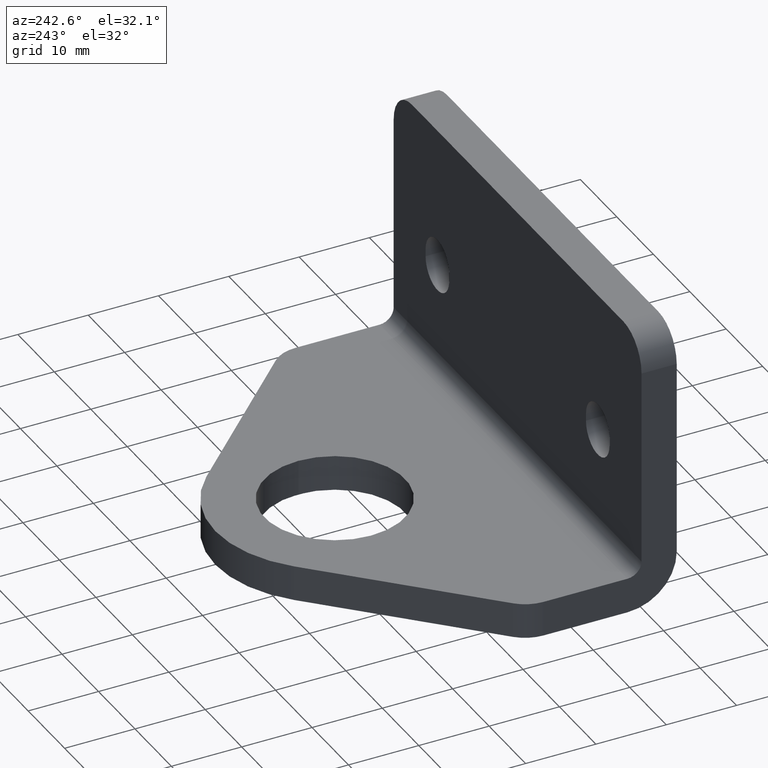
[diagram: clean part render]
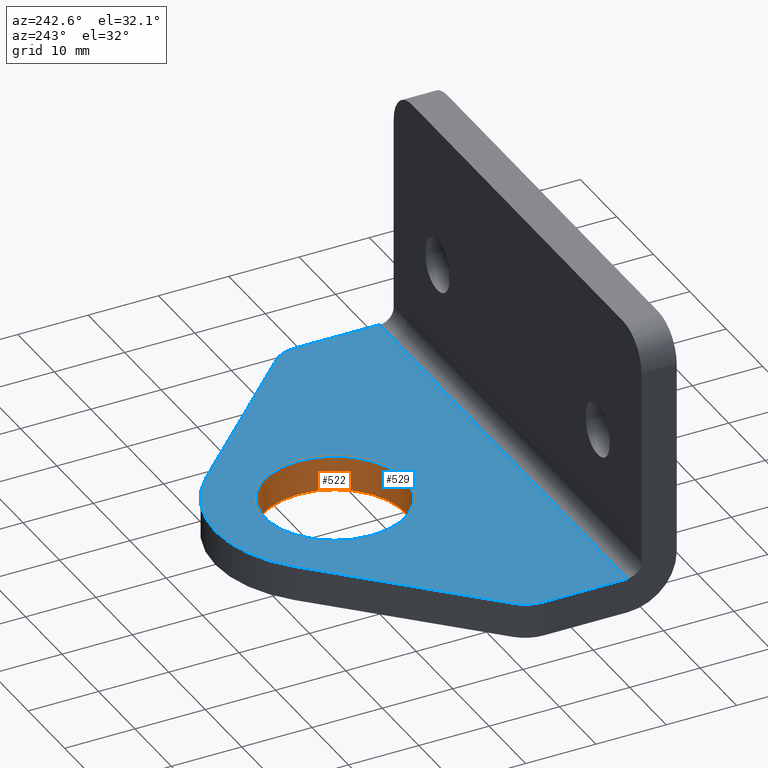
[diagram: same view with the hole feature highlighted: cylindrical wall and planar end face, labeled with their STEP entity ids]
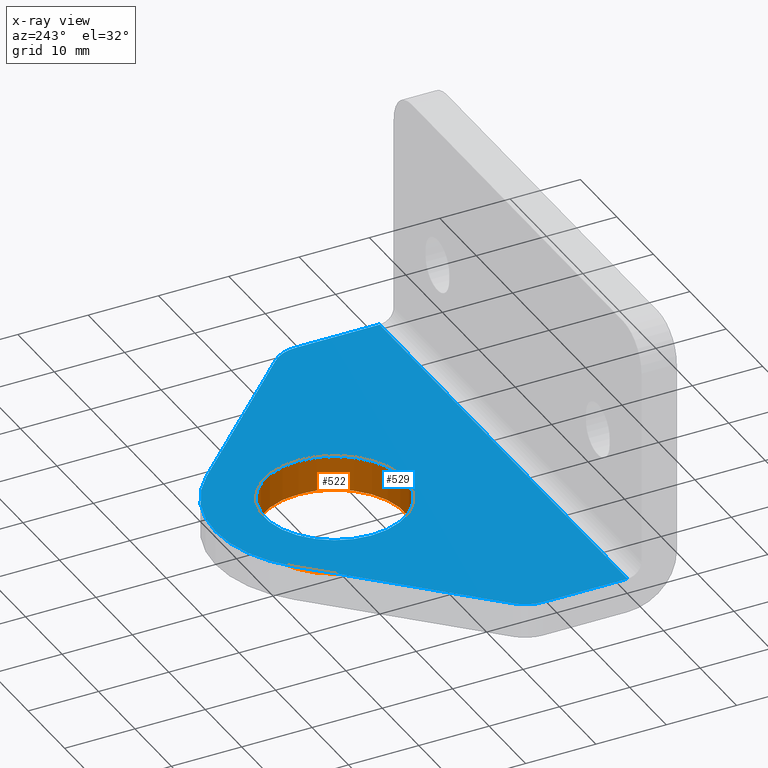
[diagram: x-ray of the same camera — body ghosted, the hole faces saturated]
A machine part, auxiliary view. The highlighted faces form one hole feature of diameter 20 mm: the cylindrical wall (entity #522, orange) and its adjacent planar end face (entity #529, blue) — they share a circular edge in the B-rep.
The next image is the same camera in x-ray (body ghosted, the hole faces saturated) — the bore reads through the body.
Wall:
#59=FACE_OUTER_BOUND('',#93,.T.);
#93=EDGE_LOOP('',(#452,#453,#454,#455));
#142=LINE('',#887,#191);
#191=VECTOR('',#732,10.);
#219=CIRCLE('',#593,10.);
#220=CIRCLE('',#595,10.);
#263=VERTEX_POINT('',#883);
#264=VERTEX_POINT('',#886);
#329=EDGE_CURVE('',#263,#263,#219,.T.);
#330=EDGE_CURVE('',#263,#264,#142,.T.);
#331=EDGE_CURVE('',#264,#264,#220,.T.);
#452=ORIENTED_EDGE('',*,*,#329,.F.);
#453=ORIENTED_EDGE('',*,*,#330,.T.);
#454=ORIENTED_EDGE('',*,*,#331,.F.);
#455=ORIENTED_EDGE('',*,*,#330,.F.);
#497=CYLINDRICAL_SURFACE('',#594,10.);
#522=ADVANCED_FACE('',(#59),#497,.F.);
#593=AXIS2_PLACEMENT_3D('',#884,#728,#729);
#594=AXIS2_PLACEMENT_3D('',#885,#730,#731);
#595=AXIS2_PLACEMENT_3D('',#888,#733,#734);
#728=DIRECTION('center_axis',(0.,0.,1.));
#729=DIRECTION('ref_axis',(-1.,0.,0.));
#730=DIRECTION('center_axis',(0.,0.,1.));
#731=DIRECTION('ref_axis',(-1.,0.,0.));
#732=DIRECTION('',(0.,0.,1.));
#733=DIRECTION('center_axis',(0.,0.,-1.));
#734=DIRECTION('ref_axis',(-1.,0.,0.));
#883=CARTESIAN_POINT('',(68.0042551273481,257.069818076792,0.));
#884=CARTESIAN_POINT('Origin',(58.0042551273481,257.069818076792,0.));
#885=CARTESIAN_POINT('Origin',(58.0042551273481,257.069818076792,0.));
#886=CARTESIAN_POINT('',(68.0042551273481,257.069818076792,5.));
#887=CARTESIAN_POINT('',(68.0042551273481,257.069818076792,0.));
#888=CARTESIAN_POINT('Origin',(58.0042551273481,257.069818076792,5.));
End face:
#20=FACE_BOUND('',#101,.T.);
#37=PLANE('',#605);
#66=FACE_OUTER_BOUND('',#100,.T.);
#100=EDGE_LOOP('',(#480,#481,#482,#483,#484,#485,#486,#487));
#101=EDGE_LOOP('',(#488));
#135=LINE('',#864,#184);
#138=LINE('',#870,#187);
#145=LINE('',#897,#194);
#148=LINE('',#905,#197);
#150=LINE('',#910,#199);
#184=VECTOR('',#711,10.);
#187=VECTOR('',#716,10.);
#194=VECTOR('',#743,10.);
#197=VECTOR('',#752,10.);
#199=VECTOR('',#760,10.);
#220=CIRCLE('',#595,10.);
#221=CIRCLE('',#597,4.99999999999999);
#222=CIRCLE('',#600,17.);
#223=CIRCLE('',#603,4.9999999999999);
#254=VERTEX_POINT('',#853);
#255=VERTEX_POINT('',#857);
#257=VERTEX_POINT('',#868);
#264=VERTEX_POINT('',#886);
#265=VERTEX_POINT('',#890);
#266=VERTEX_POINT('',#892);
#267=VERTEX_POINT('',#896);
#268=VERTEX_POINT('',#900);
#269=VERTEX_POINT('',#904);
#319=EDGE_CURVE('',#254,#255,#135,.T.);
#322=EDGE_CURVE('',#255,#257,#138,.T.);
#331=EDGE_CURVE('',#264,#264,#220,.T.);
#333=EDGE_CURVE('',#266,#265,#221,.T.);
#335=EDGE_CURVE('',#267,#266,#145,.T.);
#337=EDGE_CURVE('',#268,#267,#222,.T.);
#339=EDGE_CURVE('',#269,#268,#148,.T.);
#341=EDGE_CURVE('',#257,#269,#223,.T.);
#342=EDGE_CURVE('',#265,#254,#150,.T.);
#480=ORIENTED_EDGE('',*,*,#319,.T.);
#481=ORIENTED_EDGE('',*,*,#322,.T.);
#482=ORIENTED_EDGE('',*,*,#341,.T.);
#483=ORIENTED_EDGE('',*,*,#339,.T.);
#484=ORIENTED_EDGE('',*,*,#337,.T.);
#485=ORIENTED_EDGE('',*,*,#335,.T.);
#486=ORIENTED_EDGE('',*,*,#333,.T.);
#487=ORIENTED_EDGE('',*,*,#342,.T.);
#488=ORIENTED_EDGE('',*,*,#331,.T.);
#529=ADVANCED_FACE('',(#66,#20),#37,.T.);
#595=AXIS2_PLACEMENT_3D('',#888,#733,#734);
#597=AXIS2_PLACEMENT_3D('',#893,#738,#739);
#600=AXIS2_PLACEMENT_3D('',#901,#747,#748);
#603=AXIS2_PLACEMENT_3D('',#908,#756,#757);
#605=AXIS2_PLACEMENT_3D('',#911,#761,#762);
#711=DIRECTION('',(1.,0.,0.));
#716=DIRECTION('',(0.,1.,0.));
#733=DIRECTION('center_axis',(0.,0.,-1.));
#734=DIRECTION('ref_axis',(-1.,0.,0.));
#738=DIRECTION('center_axis',(0.,0.,1.));
#739=DIRECTION('ref_axis',(-0.707106781186547,0.707106781186548,0.));
#743=DIRECTION('',(-0.707106781186541,-0.707106781186554,0.));
#747=DIRECTION('center_axis',(0.,0.,1.));
#748=DIRECTION('ref_axis',(0.707106781186542,0.707106781186554,0.));
#752=DIRECTION('',(-0.707106781186554,0.707106781186541,0.));
#756=DIRECTION('center_axis',(0.,0.,1.));
#757=DIRECTION('ref_axis',(1.,0.,0.));
#760=DIRECTION('',(0.,-1.,0.));
#761=DIRECTION('center_axis',(0.,0.,1.));
#762=DIRECTION('ref_axis',(1.,0.,0.));
#853=CARTESIAN_POINT('',(24.0042550273485,233.069817976792,5.));
#857=CARTESIAN_POINT('',(92.0042552273484,233.069817976792,5.));
#864=CARTESIAN_POINT('',(75.0042551773484,233.069817976792,5.));
#868=CARTESIAN_POINT('',(92.0042552273484,245.04038072527,5.));
#870=CARTESIAN_POINT('',(92.0042552273484,226.069817976793,5.));
#886=CARTESIAN_POINT('',(68.0042551273481,257.069818076792,5.));
#888=CARTESIAN_POINT('Origin',(58.0042551273481,257.069818076792,5.));
#890=CARTESIAN_POINT('',(24.0042550273485,245.04038072527,5.));
#892=CARTESIAN_POINT('',(25.4687211214157,248.575914631202,5.));
#893=CARTESIAN_POINT('Origin',(29.0042550273484,245.04038072527,5.));
#896=CARTESIAN_POINT('',(45.9834398471767,269.090633356964,5.));
#897=CARTESIAN_POINT('',(45.9834398471767,269.090633356964,5.));
#900=CARTESIAN_POINT('',(70.0250704075193,269.090633356964,5.));
#901=CARTESIAN_POINT('Origin',(58.0042551273481,257.069818076792,5.));
#904=CARTESIAN_POINT('',(90.5397891332811,248.575914631202,5.));
#905=CARTESIAN_POINT('',(90.5397891332811,248.575914631202,5.));
#908=CARTESIAN_POINT('Origin',(87.0042552273485,245.04038072527,5.));
#910=CARTESIAN_POINT('',(24.0042550273485,245.04038072527,5.));
#911=CARTESIAN_POINT('Origin',(58.0042551273484,228.569817976793,5.));